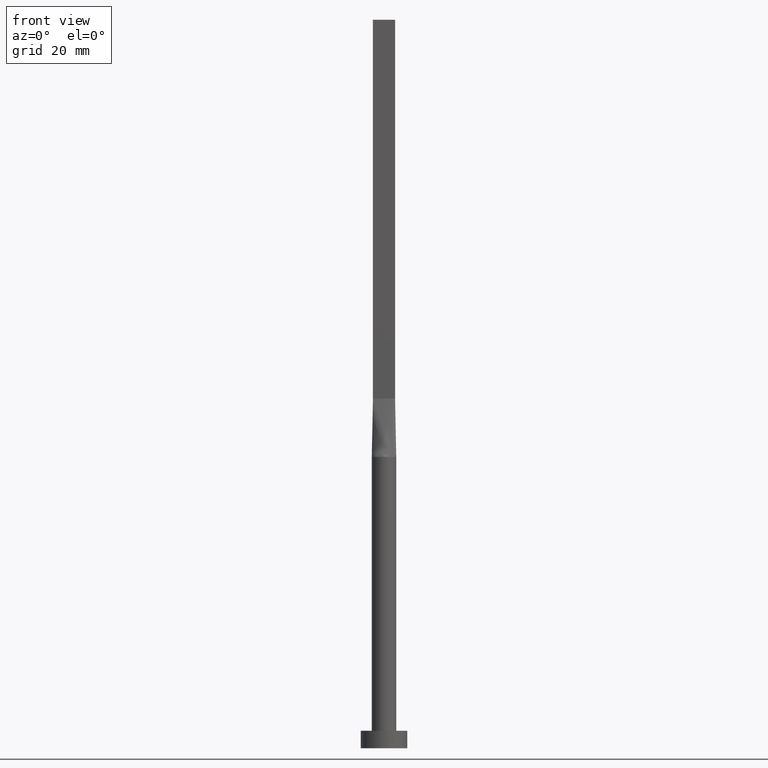
[diagram: clean part render]
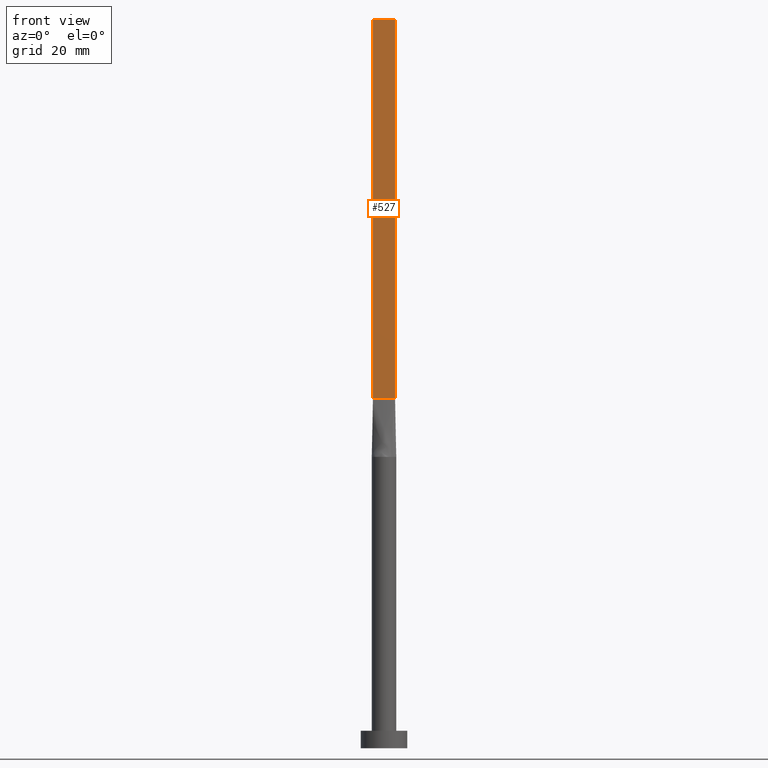
[diagram: same view with one face highlighted and labeled with its STEP entity id]
A machine part, front view. The second image highlights one B-rep face of the part: STEP entity #527.
In plain terms, the highlighted planar face has unit normal (0, 1, -0).
Its self-contained STEP definition (entity closure, byte-faithful):
#7 = DIRECTION ( 'NONE',  ( -0.000000000000000000, -0.000000000000000000, -1.000000000000000000 ) ) ;
#8 = CARTESIAN_POINT ( 'NONE',  ( -1.899999999999999911, -0.2499999999999995837, 60.00000000000000711 ) ) ;
#23 = CARTESIAN_POINT ( 'NONE',  ( -1.899999999999999911, -0.2499999999999995837, 125.0000000000000000 ) ) ;
#27 = DIRECTION ( 'NONE',  ( -1.000000000000000000, 5.706327223607920020E-17, 0.000000000000000000 ) ) ;
#31 = ORIENTED_EDGE ( 'NONE', *, *, #406, .F. ) ;
#32 = VERTEX_POINT ( 'NONE', #65 ) ;
#42 = VECTOR ( 'NONE', #466, 1000.000000000000000 ) ;
#65 = CARTESIAN_POINT ( 'NONE',  ( -1.899999999999999911, -0.2499999999999995837, 60.00000000000000711 ) ) ;
#95 = DIRECTION ( 'NONE',  ( 1.000000000000000000, -5.706327223607918787E-17, 0.000000000000000000 ) ) ;
#103 = LINE ( 'NONE', #145, #403 ) ;
#116 = DIRECTION ( 'NONE',  ( 5.706327223607920020E-17, 1.000000000000000000, -0.000000000000000000 ) ) ;
#118 = VERTEX_POINT ( 'NONE', #389 ) ;
#145 = CARTESIAN_POINT ( 'NONE',  ( 1.899999999999999023, -0.2499999999999997780, 125.0000000000000000 ) ) ;
#188 = AXIS2_PLACEMENT_3D ( 'NONE', #372, #116, #27 ) ;
#205 = EDGE_CURVE ( 'NONE', #118, #295, #103, .T. ) ;
#224 = ORIENTED_EDGE ( 'NONE', *, *, #308, .T. ) ;
#239 = VECTOR ( 'NONE', #451, 1000.000000000000000 ) ;
#244 = CARTESIAN_POINT ( 'NONE',  ( -1.899999999999999911, -0.2499999999999995837, 125.0000000000000000 ) ) ;
#295 = VERTEX_POINT ( 'NONE', #494 ) ;
#296 = EDGE_CURVE ( 'NONE', #386, #32, #414, .T. ) ;
#308 = EDGE_CURVE ( 'NONE', #32, #295, #448, .T. ) ;
#326 = ORIENTED_EDGE ( 'NONE', *, *, #205, .F. ) ;
#355 = VECTOR ( 'NONE', #95, 1000.000000000000000 ) ;
#372 = CARTESIAN_POINT ( 'NONE',  ( -1.899999999999999911, -0.2499999999999995837, 125.0000000000000000 ) ) ;
#386 = VERTEX_POINT ( 'NONE', #244 ) ;
#387 = ORIENTED_EDGE ( 'NONE', *, *, #296, .T. ) ;
#389 = CARTESIAN_POINT ( 'NONE',  ( 1.899999999999999023, -0.2499999999999997780, 125.0000000000000000 ) ) ;
#403 = VECTOR ( 'NONE', #7, 1000.000000000000000 ) ;
#405 = EDGE_LOOP ( 'NONE', ( #224, #326, #31, #387 ) ) ;
#406 = EDGE_CURVE ( 'NONE', #386, #118, #417, .T. ) ;
#414 = LINE ( 'NONE', #489, #239 ) ;
#417 = LINE ( 'NONE', #23, #42 ) ;
#448 = LINE ( 'NONE', #8, #355 ) ;
#451 = DIRECTION ( 'NONE',  ( -0.000000000000000000, -0.000000000000000000, -1.000000000000000000 ) ) ;
#462 = FACE_OUTER_BOUND ( 'NONE', #405, .T. ) ;
#466 = DIRECTION ( 'NONE',  ( 1.000000000000000000, -5.706327223607920020E-17, 0.000000000000000000 ) ) ;
#489 = CARTESIAN_POINT ( 'NONE',  ( -1.899999999999999911, -0.2499999999999995837, 125.0000000000000000 ) ) ;
#494 = CARTESIAN_POINT ( 'NONE',  ( 1.899999999999999023, -0.2499999999999997780, 60.00000000000000711 ) ) ;
#510 = PLANE ( 'NONE',  #188 ) ;
#527 = ADVANCED_FACE ( 'NONE', ( #462 ), #510, .F. ) ;